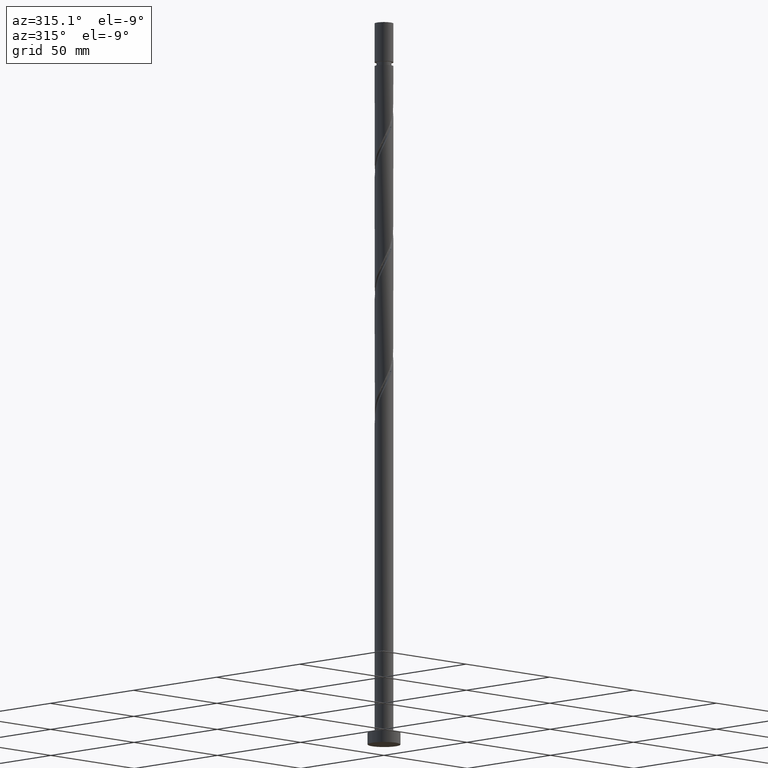
[diagram: clean part render]
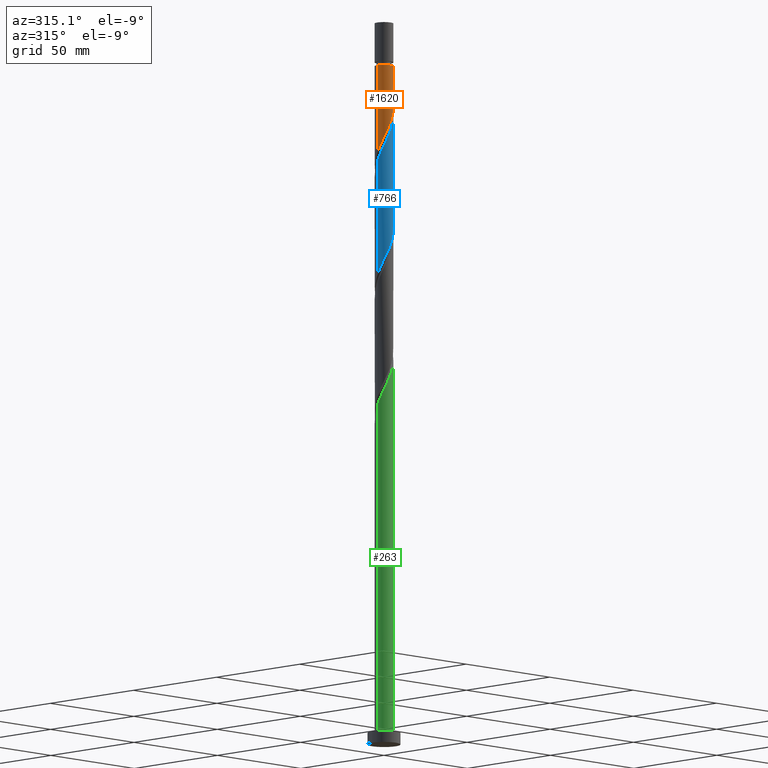
[diagram: same view with three faces highlighted in distinct colors, each labeled with its STEP entity id]
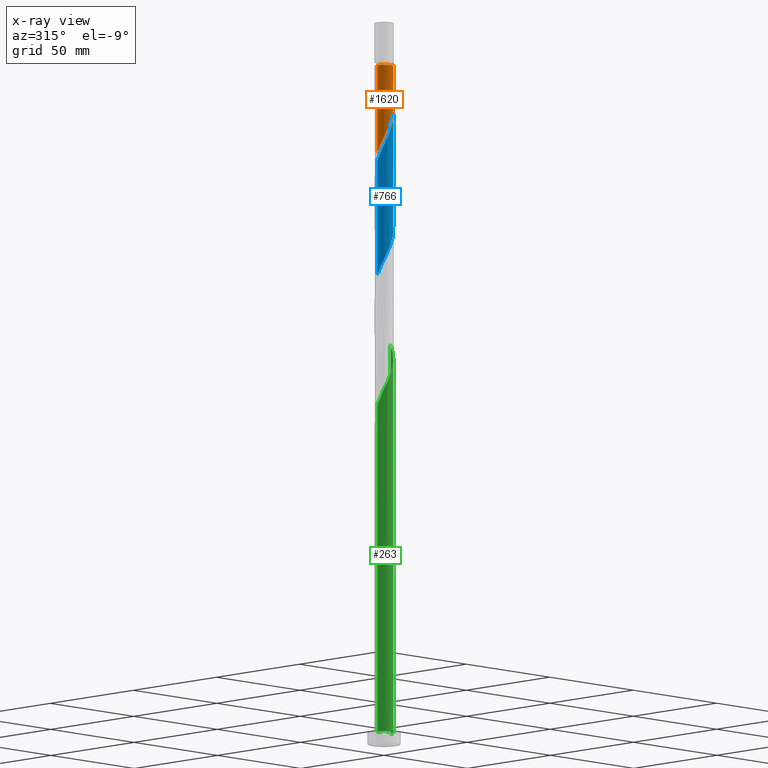
[diagram: x-ray of the same camera — body ghosted, the three highlighted faces saturated]
A machine part, auxiliary view with three faces highlighted in distinct colors.
The next image is the same camera in x-ray (body ghosted, the three faces saturated) — at least one of them is partly hidden behind the body in this view.
Their STEP definitions:

[orange] entity #1620 — the highlighted cylindrical surface (edge-blend (fillet) strip) has radius 4 mm, axis along (-0, -0, -1).
#47 = ORIENTED_EDGE ( 'NONE', *, *, #1662, .F. ) ;
#81 = CARTESIAN_POINT ( 'NONE',  ( -3.066410025678343754, -2.568487795263845186, 259.7856802537389740 ) ) ;
#143 = LINE ( 'NONE', #748, #1891 ) ;
#171 = DIRECTION ( 'NONE',  ( -0.000000000000000000, -0.000000000000000000, -1.000000000000000000 ) ) ;
#177 = DIRECTION ( 'NONE',  ( -0.000000000000000000, -0.000000000000000000, -1.000000000000000000 ) ) ;
#190 = CARTESIAN_POINT ( 'NONE',  ( 2.222986362731492083, -3.355809096668278091, 271.9731802537389171 ) ) ;
#203 = CARTESIAN_POINT ( 'NONE',  ( -3.999999999999999112, -0.04813158866556273979, 254.0605600198701381 ) ) ;
#232 = DIRECTION ( 'NONE',  ( -1.000000000000000000, 0.000000000000000000, 0.000000000000000000 ) ) ;
#247 = CARTESIAN_POINT ( 'NONE',  ( -3.999999999999976019, 0.000000000000000000, 291.6606802537389740 ) ) ;
#337 = CARTESIAN_POINT ( 'NONE',  ( 3.186430866508027648, -2.417986421170494449, 274.7856802537389740 ) ) ;
#344 = CIRCLE ( 'NONE', #588, 3.999999999999976019 ) ;
#352 = CARTESIAN_POINT ( 'NONE',  ( -3.561071027285505952, -1.821750020894125521, 257.9106802537389171 ) ) ;
#373 = CARTESIAN_POINT ( 'NONE',  ( -2.777010954688412969, -2.913989227796199177, 260.7231802537389171 ) ) ;
#377 = VECTOR ( 'NONE', #177, 1000.000000000000000 ) ;
#445 =( BOUNDED_CURVE ( )  B_SPLINE_CURVE ( 2, ( #972, #1542, #1421, #1708, #982, #1823, #337, #1242, #1673, #190, #934, #652, #784, #823, #1552, #639, #1409, #1399, #1385, #496, #1686, #373, #81, #674, #352, #1856, #529, #1131, #664, #203, #1255 ),
 .UNSPECIFIED., .F., .T. ) 
 B_SPLINE_CURVE_WITH_KNOTS ( ( 3, 2, 2, 2, 2, 2, 2, 2, 2, 2, 2, 2, 2, 2, 2, 3 ),
 ( 0.3045303401299221391, 0.3125000000000000000, 0.3214285714285714524, 0.3303571428571428492, 0.3392857142857143016, 0.3482142857142856984, 0.3571428571428571508, 0.3660714285714285476, 0.3750000000000000000, 0.3839285714285714524, 0.3928571428571428492, 0.4017857142857143016, 0.4107142857142856984, 0.4196428571428571508, 0.4285714285714285476, 0.4295303401299219725 ),
 .UNSPECIFIED. ) 
 CURVE ( )  GEOMETRIC_REPRESENTATION_ITEM ( )  RATIONAL_B_SPLINE_CURVE ( ( 0.9079949616362035236, 0.9039886423360667944, 0.9090909090909334855, 0.9033747362666083580, 0.9090909090909334855, 0.9033747362666083580, 0.9090909090909334855, 0.9033747362666083580, 0.9090909090909334855, 0.9033747362666083580, 0.9090909090909334855, 0.9033747362666083580, 0.9090909090909334855, 0.9033747362666083580, 0.9090909090909334855, 0.9033747362666083580, 0.9090909090909334855, 0.9033747362666083580, 0.9090909090909334855, 0.9033747362666083580, 0.9090909090909334855, 0.9033747362666083580, 0.9090909090909334855, 0.9033747362666083580, 0.9090909090909334855, 0.9033747362666083580, 0.9090909090909334855, 0.9033747362666083580, 0.9090909090909334855, 0.9084770030214752712, 0.9079949616362036346 ) ) 
 REPRESENTATION_ITEM ( '' )  );
#456 = DIRECTION ( 'NONE',  ( -0.000000000000000000, -0.000000000000000000, -1.000000000000000000 ) ) ;
#496 = CARTESIAN_POINT ( 'NONE',  ( -2.058961887652576817, -3.458872505219855675, 262.5981802537389740 ) ) ;
#499 = ORIENTED_EDGE ( 'NONE', *, *, #1605, .F. ) ;
#511 = CYLINDRICAL_SURFACE ( 'NONE', #1564, 4.000000000000000000 ) ;
#529 = CARTESIAN_POINT ( 'NONE',  ( -3.877165057846935436, -0.9836620935111604069, 256.0356802537389171 ) ) ;
#588 = AXIS2_PLACEMENT_3D ( 'NONE', #1797, #171, #1357 ) ;
#606 = CARTESIAN_POINT ( 'NONE',  ( -3.999999999999999112, 7.156908403571792636E-15, 253.9601973316449914 ) ) ;
#639 = CARTESIAN_POINT ( 'NONE',  ( -0.3543120252768633960, -4.009686527761982866, 266.3481802537389171 ) ) ;
#652 = CARTESIAN_POINT ( 'NONE',  ( 1.420513679056759626, -3.766332957902735590, 270.0981802537389740 ) ) ;
#656 = LINE ( 'NONE', #1220, #377 ) ;
#664 = CARTESIAN_POINT ( 'NONE',  ( -3.998841842776559741, -0.09624924134434931222, 254.1606802537389456 ) ) ;
#674 = CARTESIAN_POINT ( 'NONE',  ( -3.355809096668276315, -2.222986362731492083, 258.8481802537389740 ) ) ;
#748 = CARTESIAN_POINT ( 'NONE',  ( -4.000000000000000000, 0.000000000000000000, 310.0000000000000000 ) ) ;
#784 = CARTESIAN_POINT ( 'NONE',  ( 0.9836620935111604069, -3.877165057846935436, 269.1606802537389740 ) ) ;
#823 = CARTESIAN_POINT ( 'NONE',  ( 0.5468105079655616318, -3.987997157791136171, 268.2231802537389740 ) ) ;
#841 = VERTEX_POINT ( 'NONE', #1291 ) ;
#852 = VERTEX_POINT ( 'NONE', #247 ) ;
#934 = CARTESIAN_POINT ( 'NONE',  ( 1.821750020894124855, -3.561071027285505952, 271.0356802537389740 ) ) ;
#972 = CARTESIAN_POINT ( 'NONE',  ( 3.999999999999999112, -2.044830972449083723E-15, 280.2101973316449630 ) ) ;
#982 = CARTESIAN_POINT ( 'NONE',  ( 3.644592988728935445, -1.648314880873155586, 276.6606802537389740 ) ) ;
#1021 = EDGE_CURVE ( 'NONE', #841, #852, #344, .T. ) ;
#1112 = CARTESIAN_POINT ( 'NONE',  ( 0.000000000000000000, 0.000000000000000000, 310.0000000000000000 ) ) ;
#1114 = ORIENTED_EDGE ( 'NONE', *, *, #1151, .T. ) ;
#1131 = CARTESIAN_POINT ( 'NONE',  ( -3.987997157791136171, -0.5468105079655618539, 255.0981802537389171 ) ) ;
#1151 = EDGE_CURVE ( 'NONE', #852, #1726, #143, .T. ) ;
#1220 = CARTESIAN_POINT ( 'NONE',  ( 4.000000000000000000, 4.898587196589412829E-16, 310.0000000000000000 ) ) ;
#1231 = VERTEX_POINT ( 'NONE', #1537 ) ;
#1242 = CARTESIAN_POINT ( 'NONE',  ( 2.913989227796199177, -2.777010954688412969, 273.8481802537389171 ) ) ;
#1255 = CARTESIAN_POINT ( 'NONE',  ( -3.999999999999999112, 7.156908403571792636E-15, 253.9601973316449914 ) ) ;
#1267 = DIRECTION ( 'NONE',  ( -0.000000000000000000, -0.000000000000000000, -1.000000000000000000 ) ) ;
#1291 = CARTESIAN_POINT ( 'NONE',  ( 3.999999999999976019, 4.898587196589398038E-16, 291.6606802537389740 ) ) ;
#1357 = DIRECTION ( 'NONE',  ( -1.000000000000000000, 0.000000000000000000, 0.000000000000000000 ) ) ;
#1362 = EDGE_LOOP ( 'NONE', ( #47, #1544, #1114, #499 ) ) ;
#1385 = CARTESIAN_POINT ( 'NONE',  ( -1.648314880873155364, -3.644592988728935445, 263.5356802537389740 ) ) ;
#1399 = CARTESIAN_POINT ( 'NONE',  ( -1.237667874093733467, -3.830313472238014771, 264.4731802537390308 ) ) ;
#1409 = CARTESIAN_POINT ( 'NONE',  ( -0.7959899496852986811, -3.919999999999999041, 265.4106802537389740 ) ) ;
#1421 = CARTESIAN_POINT ( 'NONE',  ( 3.919999999999999041, -0.7959899496852987921, 278.5356802537389740 ) ) ;
#1537 = CARTESIAN_POINT ( 'NONE',  ( 3.999999999999999112, -2.044830972449083723E-15, 280.2101973316449630 ) ) ;
#1542 = CARTESIAN_POINT ( 'NONE',  ( 3.999999999999997335, -0.4020151261036927770, 279.3719262526813054 ) ) ;
#1544 = ORIENTED_EDGE ( 'NONE', *, *, #1021, .T. ) ;
#1552 = CARTESIAN_POINT ( 'NONE',  ( 0.09624924134434909018, -3.998841842776559741, 267.2856802537389740 ) ) ;
#1564 = AXIS2_PLACEMENT_3D ( 'NONE', #1112, #1267, #232 ) ;
#1605 = EDGE_CURVE ( 'NONE', #1231, #1726, #445, .T. ) ;
#1620 = ADVANCED_FACE ( 'NONE', ( #1715 ), #511, .T. ) ;
#1662 = EDGE_CURVE ( 'NONE', #841, #1231, #656, .T. ) ;
#1673 = CARTESIAN_POINT ( 'NONE',  ( 2.568487795263845186, -3.066410025678344198, 272.9106802537389171 ) ) ;
#1686 = CARTESIAN_POINT ( 'NONE',  ( -2.417986421170494449, -3.186430866508027648, 261.6606802537389740 ) ) ;
#1708 = CARTESIAN_POINT ( 'NONE',  ( 3.830313472238014771, -1.237667874093733467, 277.5981802537389740 ) ) ;
#1715 = FACE_OUTER_BOUND ( 'NONE', #1362, .T. ) ;
#1726 = VERTEX_POINT ( 'NONE', #606 ) ;
#1797 = CARTESIAN_POINT ( 'NONE',  ( 0.000000000000000000, 0.000000000000000000, 291.6606802537389740 ) ) ;
#1823 = CARTESIAN_POINT ( 'NONE',  ( 3.458872505219854787, -2.058961887652576817, 275.7231802537389740 ) ) ;
#1856 = CARTESIAN_POINT ( 'NONE',  ( -3.766332957902735590, -1.420513679056759626, 256.9731802537389740 ) ) ;
#1891 = VECTOR ( 'NONE', #456, 1000.000000000000000 ) ;

[blue] entity #766 — the highlighted cylindrical surface (edge-blend (fillet) strip) has radius 4 mm, axis along (-0, -0, -1).
#9 = CARTESIAN_POINT ( 'NONE',  ( -3.877165057846935436, -0.9836620935111604069, 203.5356802537390024 ) ) ;
#26 = DIRECTION ( 'NONE',  ( -0.000000000000000000, -0.000000000000000000, -1.000000000000000000 ) ) ;
#27 = CARTESIAN_POINT ( 'NONE',  ( 0.000000000000000000, 0.000000000000000000, 310.0000000000000000 ) ) ;
#38 = CARTESIAN_POINT ( 'NONE',  ( 4.000000000000000000, 4.898587196589412829E-16, 310.0000000000000000 ) ) ;
#61 = VERTEX_POINT ( 'NONE', #1042 ) ;
#83 = CARTESIAN_POINT ( 'NONE',  ( 3.987997157791141500, -0.5468105079655644074, 275.7231802537389740 ) ) ;
#88 = CARTESIAN_POINT ( 'NONE',  ( 3.999999999999998224, -0.4020151261036931656, 226.8719262526814191 ) ) ;
#96 = AXIS2_PLACEMENT_3D ( 'NONE', #27, #1094, #185 ) ;
#107 = CARTESIAN_POINT ( 'NONE',  ( 2.777010954688416078, -2.913989227796204950, 270.0981802537390308 ) ) ;
#158 = CARTESIAN_POINT ( 'NONE',  ( -3.066410025678343754, -2.568487795263845186, 207.2856802537389740 ) ) ;
#176 = VERTEX_POINT ( 'NONE', #955 ) ;
#185 = DIRECTION ( 'NONE',  ( -1.000000000000000000, 0.000000000000000000, 0.000000000000000000 ) ) ;
#194 = CARTESIAN_POINT ( 'NONE',  ( -3.561071027285505952, -1.821750020894125521, 205.4106802537389456 ) ) ;
#216 = CARTESIAN_POINT ( 'NONE',  ( -3.920000000000005258, -0.7959899496852985701, 252.2856802537389740 ) ) ;
#228 = CARTESIAN_POINT ( 'NONE',  ( 0.7959899496852981260, -3.920000000000005258, 265.4106802537389740 ) ) ;
#239 = CARTESIAN_POINT ( 'NONE',  ( -3.186430866508033866, -2.417986421170497557, 256.0356802537389740 ) ) ;
#251 = CARTESIAN_POINT ( 'NONE',  ( 3.066410025678347306, -2.568487795263851847, 271.0356802537389740 ) ) ;
#256 = CARTESIAN_POINT ( 'NONE',  ( -4.000000000000005329, 4.955356809146651200E-15, 250.6111631758328144 ) ) ;
#275 = VECTOR ( 'NONE', #1395, 1000.000000000000000 ) ;
#277 = VECTOR ( 'NONE', #26, 1000.000000000000000 ) ;
#308 = CARTESIAN_POINT ( 'NONE',  ( 3.644592988728935445, -1.648314880873155586, 224.1606802537389456 ) ) ;
#318 = CARTESIAN_POINT ( 'NONE',  ( 0.09624924134434909018, -3.998841842776559741, 214.7856802537389740 ) ) ;
#365 = CARTESIAN_POINT ( 'NONE',  ( 1.237667874093734577, -3.830313472238021433, 266.3481802537389740 ) ) ;
#398 = CARTESIAN_POINT ( 'NONE',  ( -0.9836620935111634045, -3.877165057846941654, 261.6606802537390877 ) ) ;
#452 = CARTESIAN_POINT ( 'NONE',  ( -1.648314880873155364, -3.644592988728935445, 211.0356802537389740 ) ) ;
#473 = ORIENTED_EDGE ( 'NONE', *, *, #655, .T. ) ;
#474 = CARTESIAN_POINT ( 'NONE',  ( 3.186430866508027648, -2.417986421170494449, 222.2856802537389740 ) ) ;
#478 = LINE ( 'NONE', #38, #277 ) ;
#500 = CARTESIAN_POINT ( 'NONE',  ( 3.458872505219854787, -2.058961887652576817, 223.2231802537389740 ) ) ;
#524 = CARTESIAN_POINT ( 'NONE',  ( -1.821750020894129074, -3.561071027285510837, 259.7856802537389740 ) ) ;
#539 = CARTESIAN_POINT ( 'NONE',  ( -2.568487795263851847, -3.066410025678347306, 257.9106802537390308 ) ) ;
#540 = ORIENTED_EDGE ( 'NONE', *, *, #1627, .F. ) ;
#630 = CARTESIAN_POINT ( 'NONE',  ( 2.913989227796199177, -2.777010954688412969, 221.3481802537390024 ) ) ;
#655 = EDGE_CURVE ( 'NONE', #906, #176, #931, .T. ) ;
#667 = CARTESIAN_POINT ( 'NONE',  ( 3.877165057846941654, -0.9836620935111636266, 274.7856802537390308 ) ) ;
#676 = CARTESIAN_POINT ( 'NONE',  ( 3.998841842776565958, -0.09624924134435110246, 276.6606802537390308 ) ) ;
#681 = CARTESIAN_POINT ( 'NONE',  ( 3.919999999999999041, -0.7959899496852987921, 226.0356802537390024 ) ) ;
#700 = CARTESIAN_POINT ( 'NONE',  ( -1.420513679056762735, -3.766332957902740919, 260.7231802537389740 ) ) ;
#753 = CARTESIAN_POINT ( 'NONE',  ( -3.998841842776559741, -0.09624924134434931222, 201.6606802537389740 ) ) ;
#766 = ADVANCED_FACE ( 'NONE', ( #1523 ), #947, .T. ) ;
#775 = CARTESIAN_POINT ( 'NONE',  ( 1.821750020894124855, -3.561071027285505952, 218.5356802537389740 ) ) ;
#813 = CARTESIAN_POINT ( 'NONE',  ( -3.458872505219861004, -2.058961887652579037, 255.0981802537389171 ) ) ;
#850 = CARTESIAN_POINT ( 'NONE',  ( 3.355809096668280755, -2.222986362731496524, 271.9731802537389171 ) ) ;
#906 = VERTEX_POINT ( 'NONE', #256 ) ;
#907 = CARTESIAN_POINT ( 'NONE',  ( -0.7959899496852986811, -3.919999999999999041, 212.9106802537389740 ) ) ;
#931 = LINE ( 'NONE', #1226, #275 ) ;
#947 = CYLINDRICAL_SURFACE ( 'NONE', #96, 4.000000000000000000 ) ;
#955 = CARTESIAN_POINT ( 'NONE',  ( -3.999999999999999112, 1.334364152824438586E-14, 201.4601973316449630 ) ) ;
#964 = CARTESIAN_POINT ( 'NONE',  ( -4.000000000000005329, 4.955356809146651200E-15, 250.6111631758328144 ) ) ;
#1042 = CARTESIAN_POINT ( 'NONE',  ( 4.000000000000005329, 2.238866028228908593E-17, 276.8611631758329281 ) ) ;
#1053 = CARTESIAN_POINT ( 'NONE',  ( -2.777010954688412969, -2.913989227796199177, 208.2231802537389456 ) ) ;
#1076 = CARTESIAN_POINT ( 'NONE',  ( 2.222986362731492083, -3.355809096668278091, 219.4731802537389456 ) ) ;
#1089 = CARTESIAN_POINT ( 'NONE',  ( 3.830313472238014771, -1.237667874093733467, 225.0981802537389456 ) ) ;
#1094 = DIRECTION ( 'NONE',  ( -0.000000000000000000, -0.000000000000000000, -1.000000000000000000 ) ) ;
#1103 = CARTESIAN_POINT ( 'NONE',  ( 0.5468105079655616318, -3.987997157791136171, 215.7231802537389456 ) ) ;
#1115 = CARTESIAN_POINT ( 'NONE',  ( -0.5468105079655641854, -3.987997157791142389, 262.5981802537389171 ) ) ;
#1124 = CARTESIAN_POINT ( 'NONE',  ( -2.913989227796204950, -2.777010954688416078, 256.9731802537389740 ) ) ;
#1125 =( BOUNDED_CURVE ( )  B_SPLINE_CURVE ( 2, ( #1427, #88, #681, #1089, #308, #500, #474, #630, #1363, #1076, #775, #1402, #1665, #1103, #318, #1516, #907, #1209, #452, #1496, #1259, #1053, #158, #1532, #194, #1677, #9, #1690, #753, #1814, #1506 ),
 .UNSPECIFIED., .F., .T. ) 
 B_SPLINE_CURVE_WITH_KNOTS ( ( 3, 2, 2, 2, 2, 2, 2, 2, 2, 2, 2, 2, 2, 2, 2, 3 ),
 ( 0.5545303401299221946, 0.5625000000000000000, 0.5714285714285713969, 0.5803571428571429047, 0.5892857142857143016, 0.5982142857142856984, 0.6071428571428570953, 0.6160714285714286031, 0.6250000000000000000, 0.6339285714285713969, 0.6428571428571429047, 0.6517857142857143016, 0.6607142857142856984, 0.6696428571428570953, 0.6785714285714286031, 0.6795303401299221946 ),
 .UNSPECIFIED. ) 
 CURVE ( )  GEOMETRIC_REPRESENTATION_ITEM ( )  RATIONAL_B_SPLINE_CURVE ( ( 0.9079949616362034126, 0.9039886423360666834, 0.9090909090909334855, 0.9033747362666083580, 0.9090909090909334855, 0.9033747362666083580, 0.9090909090909334855, 0.9033747362666083580, 0.9090909090909334855, 0.9033747362666083580, 0.9090909090909334855, 0.9033747362666083580, 0.9090909090909334855, 0.9033747362666083580, 0.9090909090909334855, 0.9033747362666083580, 0.9090909090909334855, 0.9033747362666083580, 0.9090909090909334855, 0.9033747362666083580, 0.9090909090909334855, 0.9033747362666083580, 0.9090909090909334855, 0.9033747362666083580, 0.9090909090909334855, 0.9033747362666083580, 0.9090909090909334855, 0.9033747362666083580, 0.9090909090909334855, 0.9084770030214751602, 0.9079949616362034126 ) ) 
 REPRESENTATION_ITEM ( '' )  );
#1180 = CARTESIAN_POINT ( 'NONE',  ( 4.000000000000005329, 2.238866028228908593E-17, 276.8611631758329281 ) ) ;
#1209 = CARTESIAN_POINT ( 'NONE',  ( -1.237667874093733467, -3.830313472238014771, 211.9731802537389740 ) ) ;
#1226 = CARTESIAN_POINT ( 'NONE',  ( -4.000000000000000000, 0.000000000000000000, 310.0000000000000000 ) ) ;
#1259 = CARTESIAN_POINT ( 'NONE',  ( -2.417986421170494449, -3.186430866508027648, 209.1606802537389740 ) ) ;
#1269 = CARTESIAN_POINT ( 'NONE',  ( 1.648314880873156474, -3.644592988728941219, 267.2856802537389740 ) ) ;
#1278 = CARTESIAN_POINT ( 'NONE',  ( 4.000000000000004441, -0.04813158866556687537, 276.7608004876078098 ) ) ;
#1284 = CARTESIAN_POINT ( 'NONE',  ( -3.830313472238021433, -1.237667874093734577, 253.2231802537389740 ) ) ;
#1310 = EDGE_CURVE ( 'NONE', #61, #1468, #478, .T. ) ;
#1363 = CARTESIAN_POINT ( 'NONE',  ( 2.568487795263845186, -3.066410025678344198, 220.4106802537390024 ) ) ;
#1387 = ORIENTED_EDGE ( 'NONE', *, *, #1827, .F. ) ;
#1395 = DIRECTION ( 'NONE',  ( -0.000000000000000000, -0.000000000000000000, -1.000000000000000000 ) ) ;
#1402 = CARTESIAN_POINT ( 'NONE',  ( 1.420513679056759626, -3.766332957902735590, 217.5981802537389740 ) ) ;
#1414 = CARTESIAN_POINT ( 'NONE',  ( 3.766332957902740919, -1.420513679056762735, 273.8481802537389740 ) ) ;
#1423 = CARTESIAN_POINT ( 'NONE',  ( 0.3543120252768625633, -4.009686527761989971, 264.4731802537389740 ) ) ;
#1427 = CARTESIAN_POINT ( 'NONE',  ( 3.999999999999998224, -2.634399026549366747E-15, 227.7101973316449914 ) ) ;
#1444 = CARTESIAN_POINT ( 'NONE',  ( -2.222986362731496524, -3.355809096668280755, 258.8481802537389740 ) ) ;
#1468 = VERTEX_POINT ( 'NONE', #1847 ) ;
#1496 = CARTESIAN_POINT ( 'NONE',  ( -2.058961887652576817, -3.458872505219855675, 210.0981802537389171 ) ) ;
#1506 = CARTESIAN_POINT ( 'NONE',  ( -3.999999999999999112, 1.334364152824438586E-14, 201.4601973316449630 ) ) ;
#1516 = CARTESIAN_POINT ( 'NONE',  ( -0.3543120252768633960, -4.009686527761982866, 213.8481802537389740 ) ) ;
#1523 = FACE_OUTER_BOUND ( 'NONE', #1663, .T. ) ;
#1532 = CARTESIAN_POINT ( 'NONE',  ( -3.355809096668276315, -2.222986362731492083, 206.3481802537389456 ) ) ;
#1565 = CARTESIAN_POINT ( 'NONE',  ( -0.09624924134435075551, -3.998841842776565958, 263.5356802537389740 ) ) ;
#1589 = CARTESIAN_POINT ( 'NONE',  ( 2.058961887652579037, -3.458872505219861448, 268.2231802537389740 ) ) ;
#1627 = EDGE_CURVE ( 'NONE', #1468, #176, #1125, .T. ) ;
#1663 = EDGE_LOOP ( 'NONE', ( #1813, #1387, #473, #540 ) ) ;
#1665 = CARTESIAN_POINT ( 'NONE',  ( 0.9836620935111604069, -3.877165057846935436, 216.6606802537390024 ) ) ;
#1677 = CARTESIAN_POINT ( 'NONE',  ( -3.766332957902735590, -1.420513679056759626, 204.4731802537389740 ) ) ;
#1690 = CARTESIAN_POINT ( 'NONE',  ( -3.987997157791136171, -0.5468105079655618539, 202.5981802537390024 ) ) ;
#1701 = CARTESIAN_POINT ( 'NONE',  ( 3.561071027285510837, -1.821750020894129518, 272.9106802537390308 ) ) ;
#1732 = CARTESIAN_POINT ( 'NONE',  ( -4.000000000000006217, -0.4020151261036811197, 251.4494342547964436 ) ) ;
#1813 = ORIENTED_EDGE ( 'NONE', *, *, #1310, .F. ) ;
#1814 = CARTESIAN_POINT ( 'NONE',  ( -3.999999999999999112, -0.04813158866555406618, 201.5605600198700813 ) ) ;
#1827 = EDGE_CURVE ( 'NONE', #906, #61, #1899, .T. ) ;
#1847 = CARTESIAN_POINT ( 'NONE',  ( 3.999999999999998224, -2.634399026549366747E-15, 227.7101973316449914 ) ) ;
#1858 = CARTESIAN_POINT ( 'NONE',  ( 2.417986421170496669, -3.186430866508033866, 269.1606802537389740 ) ) ;
#1865 = CARTESIAN_POINT ( 'NONE',  ( -3.644592988728940774, -1.648314880873156918, 254.1606802537390024 ) ) ;
#1899 =( BOUNDED_CURVE ( )  B_SPLINE_CURVE ( 2, ( #964, #1732, #216, #1284, #1865, #813, #239, #1124, #539, #1444, #524, #700, #398, #1115, #1565, #1423, #228, #365, #1269, #1589, #1858, #107, #251, #850, #1701, #1414, #667, #83, #676, #1278, #1180 ),
 .UNSPECIFIED., .F., .T. ) 
 B_SPLINE_CURVE_WITH_KNOTS ( ( 3, 2, 2, 2, 2, 2, 2, 2, 2, 2, 2, 2, 2, 2, 2, 3 ),
 ( 0.5545303401299219725, 0.5625000000000000000, 0.5714285714285713969, 0.5803571428571427937, 0.5892857142857143016, 0.5982142857142856984, 0.6071428571428572063, 0.6160714285714286031, 0.6250000000000000000, 0.6339285714285713969, 0.6428571428571427937, 0.6517857142857143016, 0.6607142857142856984, 0.6696428571428572063, 0.6785714285714286031, 0.6795303401299219725 ),
 .UNSPECIFIED. ) 
 CURVE ( )  GEOMETRIC_REPRESENTATION_ITEM ( )  RATIONAL_B_SPLINE_CURVE ( ( 0.9079949616362096299, 0.9039886423360725676, 0.9090909090909393697, 0.9033747362666143532, 0.9090909090909393697, 0.9033747362666143532, 0.9090909090909393697, 0.9033747362666143532, 0.9090909090909393697, 0.9033747362666143532, 0.9090909090909393697, 0.9033747362666143532, 0.9090909090909393697, 0.9033747362666143532, 0.9090909090909393697, 0.9033747362666143532, 0.9090909090909393697, 0.9033747362666143532, 0.9090909090909393697, 0.9033747362666143532, 0.9090909090909393697, 0.9033747362666143532, 0.9090909090909393697, 0.9033747362666143532, 0.9090909090909393697, 0.9033747362666143532, 0.9090909090909393697, 0.9033747362666143532, 0.9090909090909393697, 0.9084770030214812664, 0.9079949616362096299 ) ) 
 REPRESENTATION_ITEM ( '' )  );

[green] entity #263 — the highlighted cylindrical surface (edge-blend (fillet) strip) has radius 4 mm, axis along (-0, -0, -1).
#1 = CARTESIAN_POINT ( 'NONE',  ( 4.000000000000005329, 6.119567143825683200E-16, 171.8611631758329281 ) ) ;
#73 = ORIENTED_EDGE ( 'NONE', *, *, #1320, .F. ) ;
#91 = VERTEX_POINT ( 'NONE', #965 ) ;
#132 = CARTESIAN_POINT ( 'NONE',  ( -3.458872505219861004, -2.058961887652579037, 150.0981802537390024 ) ) ;
#140 = CARTESIAN_POINT ( 'NONE',  ( 3.998841842776565958, -0.09624924134435110246, 171.6606802537389740 ) ) ;
#166 = ORIENTED_EDGE ( 'NONE', *, *, #324, .T. ) ;
#168 = CARTESIAN_POINT ( 'NONE',  ( -4.000000000000005329, 9.933102278575590160E-15, 145.6111631758329281 ) ) ;
#193 = VERTEX_POINT ( 'NONE', #631 ) ;
#242 = EDGE_CURVE ( 'NONE', #1825, #91, #1909, .T. ) ;
#263 = ADVANCED_FACE ( 'NONE', ( #598 ), #1194, .T. ) ;
#287 = CARTESIAN_POINT ( 'NONE',  ( 2.058961887652579037, -3.458872505219861448, 163.2231802537389740 ) ) ;
#298 = CARTESIAN_POINT ( 'NONE',  ( 1.648314880873156474, -3.644592988728941219, 162.2856802537390593 ) ) ;
#306 = AXIS2_PLACEMENT_3D ( 'NONE', #1880, #553, #1755 ) ;
#309 = DIRECTION ( 'NONE',  ( -1.000000000000000000, 0.000000000000000000, 0.000000000000000000 ) ) ;
#319 = CARTESIAN_POINT ( 'NONE',  ( 3.877165057846941654, -0.9836620935111636266, 169.7856802537389740 ) ) ;
#324 = EDGE_CURVE ( 'NONE', #1515, #193, #503, .T. ) ;
#405 = DIRECTION ( 'NONE',  ( -0.000000000000000000, -0.000000000000000000, -1.000000000000000000 ) ) ;
#442 = CARTESIAN_POINT ( 'NONE',  ( 0.000000000000000000, 0.000000000000000000, 310.0000000000000000 ) ) ;
#453 = CARTESIAN_POINT ( 'NONE',  ( 3.766332957902740919, -1.420513679056762735, 168.8481802537389740 ) ) ;
#475 = CARTESIAN_POINT ( 'NONE',  ( -2.568487795263851847, -3.066410025678347306, 152.9106802537390024 ) ) ;
#503 = CIRCLE ( 'NONE', #306, 4.000000000000000000 ) ;
#552 = LINE ( 'NONE', #1466, #1158 ) ;
#553 = DIRECTION ( 'NONE',  ( 0.000000000000000000, 0.000000000000000000, 1.000000000000000000 ) ) ;
#591 = CARTESIAN_POINT ( 'NONE',  ( 2.777010954688416078, -2.913989227796204950, 165.0981802537390024 ) ) ;
#598 = FACE_OUTER_BOUND ( 'NONE', #1002, .T. ) ;
#631 = CARTESIAN_POINT ( 'NONE',  ( 4.000000000000000000, 4.898587196589412829E-16, 5.000000000000000000 ) ) ;
#666 = ORIENTED_EDGE ( 'NONE', *, *, #984, .T. ) ;
#745 = CARTESIAN_POINT ( 'NONE',  ( -0.5468105079655641854, -3.987997157791142389, 157.5981802537389740 ) ) ;
#764 = CARTESIAN_POINT ( 'NONE',  ( -2.222986362731496524, -3.355809096668280755, 153.8481802537389740 ) ) ;
#878 = CARTESIAN_POINT ( 'NONE',  ( -0.09624924134435075551, -3.998841842776565958, 158.5356802537390308 ) ) ;
#887 = CARTESIAN_POINT ( 'NONE',  ( 3.987997157791141500, -0.5468105079655644074, 170.7231802537390024 ) ) ;
#918 = CARTESIAN_POINT ( 'NONE',  ( 3.561071027285510837, -1.821750020894129518, 167.9106802537389456 ) ) ;
#935 = AXIS2_PLACEMENT_3D ( 'NONE', #442, #1644, #309 ) ;
#961 = CARTESIAN_POINT ( 'NONE',  ( -4.000000000000000000, 0.000000000000000000, 5.000000000000000000 ) ) ;
#965 = CARTESIAN_POINT ( 'NONE',  ( 4.000000000000005329, 6.119567143825683200E-16, 171.8611631758329281 ) ) ;
#984 = EDGE_CURVE ( 'NONE', #1825, #1515, #552, .T. ) ;
#1000 = CARTESIAN_POINT ( 'NONE',  ( -4.000000000000005329, 9.933102278575590160E-15, 145.6111631758328997 ) ) ;
#1002 = EDGE_LOOP ( 'NONE', ( #73, #1219, #666, #166 ) ) ;
#1036 = CARTESIAN_POINT ( 'NONE',  ( -1.420513679056762735, -3.766332957902740919, 155.7231802537389456 ) ) ;
#1054 = CARTESIAN_POINT ( 'NONE',  ( 4.000000000000004441, -0.04813158866556548066, 171.7608004876078382 ) ) ;
#1066 = CARTESIAN_POINT ( 'NONE',  ( -3.644592988728940774, -1.648314880873156918, 149.1606802537390308 ) ) ;
#1158 = VECTOR ( 'NONE', #405, 1000.000000000000000 ) ;
#1182 = CARTESIAN_POINT ( 'NONE',  ( -4.000000000000007105, -0.4020151261036770118, 146.4494342547964720 ) ) ;
#1194 = CYLINDRICAL_SURFACE ( 'NONE', #935, 4.000000000000000000 ) ;
#1200 = CARTESIAN_POINT ( 'NONE',  ( -3.830313472238021433, -1.237667874093734577, 148.2231802537389456 ) ) ;
#1219 = ORIENTED_EDGE ( 'NONE', *, *, #242, .F. ) ;
#1320 = EDGE_CURVE ( 'NONE', #91, #193, #1394, .T. ) ;
#1346 = CARTESIAN_POINT ( 'NONE',  ( 3.066410025678347306, -2.568487795263851847, 166.0356802537390024 ) ) ;
#1354 = CARTESIAN_POINT ( 'NONE',  ( 3.355809096668280755, -2.222986362731496524, 166.9731802537389171 ) ) ;
#1364 = CARTESIAN_POINT ( 'NONE',  ( 1.237667874093734577, -3.830313472238021433, 161.3481802537389456 ) ) ;
#1381 = CARTESIAN_POINT ( 'NONE',  ( 4.000000000000000000, 4.898587196589412829E-16, 310.0000000000000000 ) ) ;
#1394 = LINE ( 'NONE', #1381, #1717 ) ;
#1466 = CARTESIAN_POINT ( 'NONE',  ( -4.000000000000000000, 0.000000000000000000, 310.0000000000000000 ) ) ;
#1471 = CARTESIAN_POINT ( 'NONE',  ( 2.417986421170496669, -3.186430866508033866, 164.1606802537389740 ) ) ;
#1479 = CARTESIAN_POINT ( 'NONE',  ( -0.9836620935111634045, -3.877165057846941654, 156.6606802537390308 ) ) ;
#1515 = VERTEX_POINT ( 'NONE', #961 ) ;
#1625 = CARTESIAN_POINT ( 'NONE',  ( -3.186430866508033866, -2.417986421170497557, 151.0356802537389740 ) ) ;
#1634 = CARTESIAN_POINT ( 'NONE',  ( 0.7959899496852981260, -3.920000000000005258, 160.4106802537390024 ) ) ;
#1644 = DIRECTION ( 'NONE',  ( -0.000000000000000000, -0.000000000000000000, -1.000000000000000000 ) ) ;
#1717 = VECTOR ( 'NONE', #1831, 1000.000000000000000 ) ;
#1755 = DIRECTION ( 'NONE',  ( 1.000000000000000000, 0.000000000000000000, 0.000000000000000000 ) ) ;
#1766 = CARTESIAN_POINT ( 'NONE',  ( -1.821750020894129074, -3.561071027285510837, 154.7856802537389740 ) ) ;
#1792 = CARTESIAN_POINT ( 'NONE',  ( -3.920000000000005258, -0.7959899496852985701, 147.2856802537389740 ) ) ;
#1805 = CARTESIAN_POINT ( 'NONE',  ( -2.913989227796204950, -2.777010954688416078, 151.9731802537389456 ) ) ;
#1825 = VERTEX_POINT ( 'NONE', #1000 ) ;
#1831 = DIRECTION ( 'NONE',  ( -0.000000000000000000, -0.000000000000000000, -1.000000000000000000 ) ) ;
#1880 = CARTESIAN_POINT ( 'NONE',  ( 0.000000000000000000, 0.000000000000000000, 5.000000000000000000 ) ) ;
#1909 =( BOUNDED_CURVE ( )  B_SPLINE_CURVE ( 2, ( #168, #1182, #1792, #1200, #1066, #132, #1625, #1805, #475, #764, #1766, #1036, #1479, #745, #878, #1919, #1634, #1364, #298, #287, #1471, #591, #1346, #1354, #918, #453, #319, #887, #140, #1054, #1 ),
 .UNSPECIFIED., .F., .T. ) 
 B_SPLINE_CURVE_WITH_KNOTS ( ( 3, 2, 2, 2, 2, 2, 2, 2, 2, 2, 2, 2, 2, 2, 2, 3 ),
 ( 0.05453034012992188928, 0.06250000000000000000, 0.07142857142857139685, 0.08035714285714290472, 0.08928571428571430157, 0.09821428571428569843, 0.1071428571428570953, 0.1160714285714286031, 0.1250000000000000000, 0.1339285714285713969, 0.1428571428571429047, 0.1517857142857143016, 0.1607142857142856984, 0.1696428571428570953, 0.1785714285714286031, 0.1795303401299220003 ),
 .UNSPECIFIED. ) 
 CURVE ( )  GEOMETRIC_REPRESENTATION_ITEM ( )  RATIONAL_B_SPLINE_CURVE ( ( 0.9079949616362096299, 0.9039886423360725676, 0.9090909090909393697, 0.9033747362666143532, 0.9090909090909393697, 0.9033747362666143532, 0.9090909090909393697, 0.9033747362666143532, 0.9090909090909393697, 0.9033747362666143532, 0.9090909090909393697, 0.9033747362666143532, 0.9090909090909393697, 0.9033747362666143532, 0.9090909090909393697, 0.9033747362666143532, 0.9090909090909393697, 0.9033747362666143532, 0.9090909090909393697, 0.9033747362666143532, 0.9090909090909393697, 0.9033747362666143532, 0.9090909090909393697, 0.9033747362666143532, 0.9090909090909393697, 0.9033747362666143532, 0.9090909090909393697, 0.9033747362666143532, 0.9090909090909393697, 0.9084770030214812664, 0.9079949616362096299 ) ) 
 REPRESENTATION_ITEM ( '' )  );
#1919 = CARTESIAN_POINT ( 'NONE',  ( 0.3543120252768625633, -4.009686527761989971, 159.4731802537390593 ) ) ;